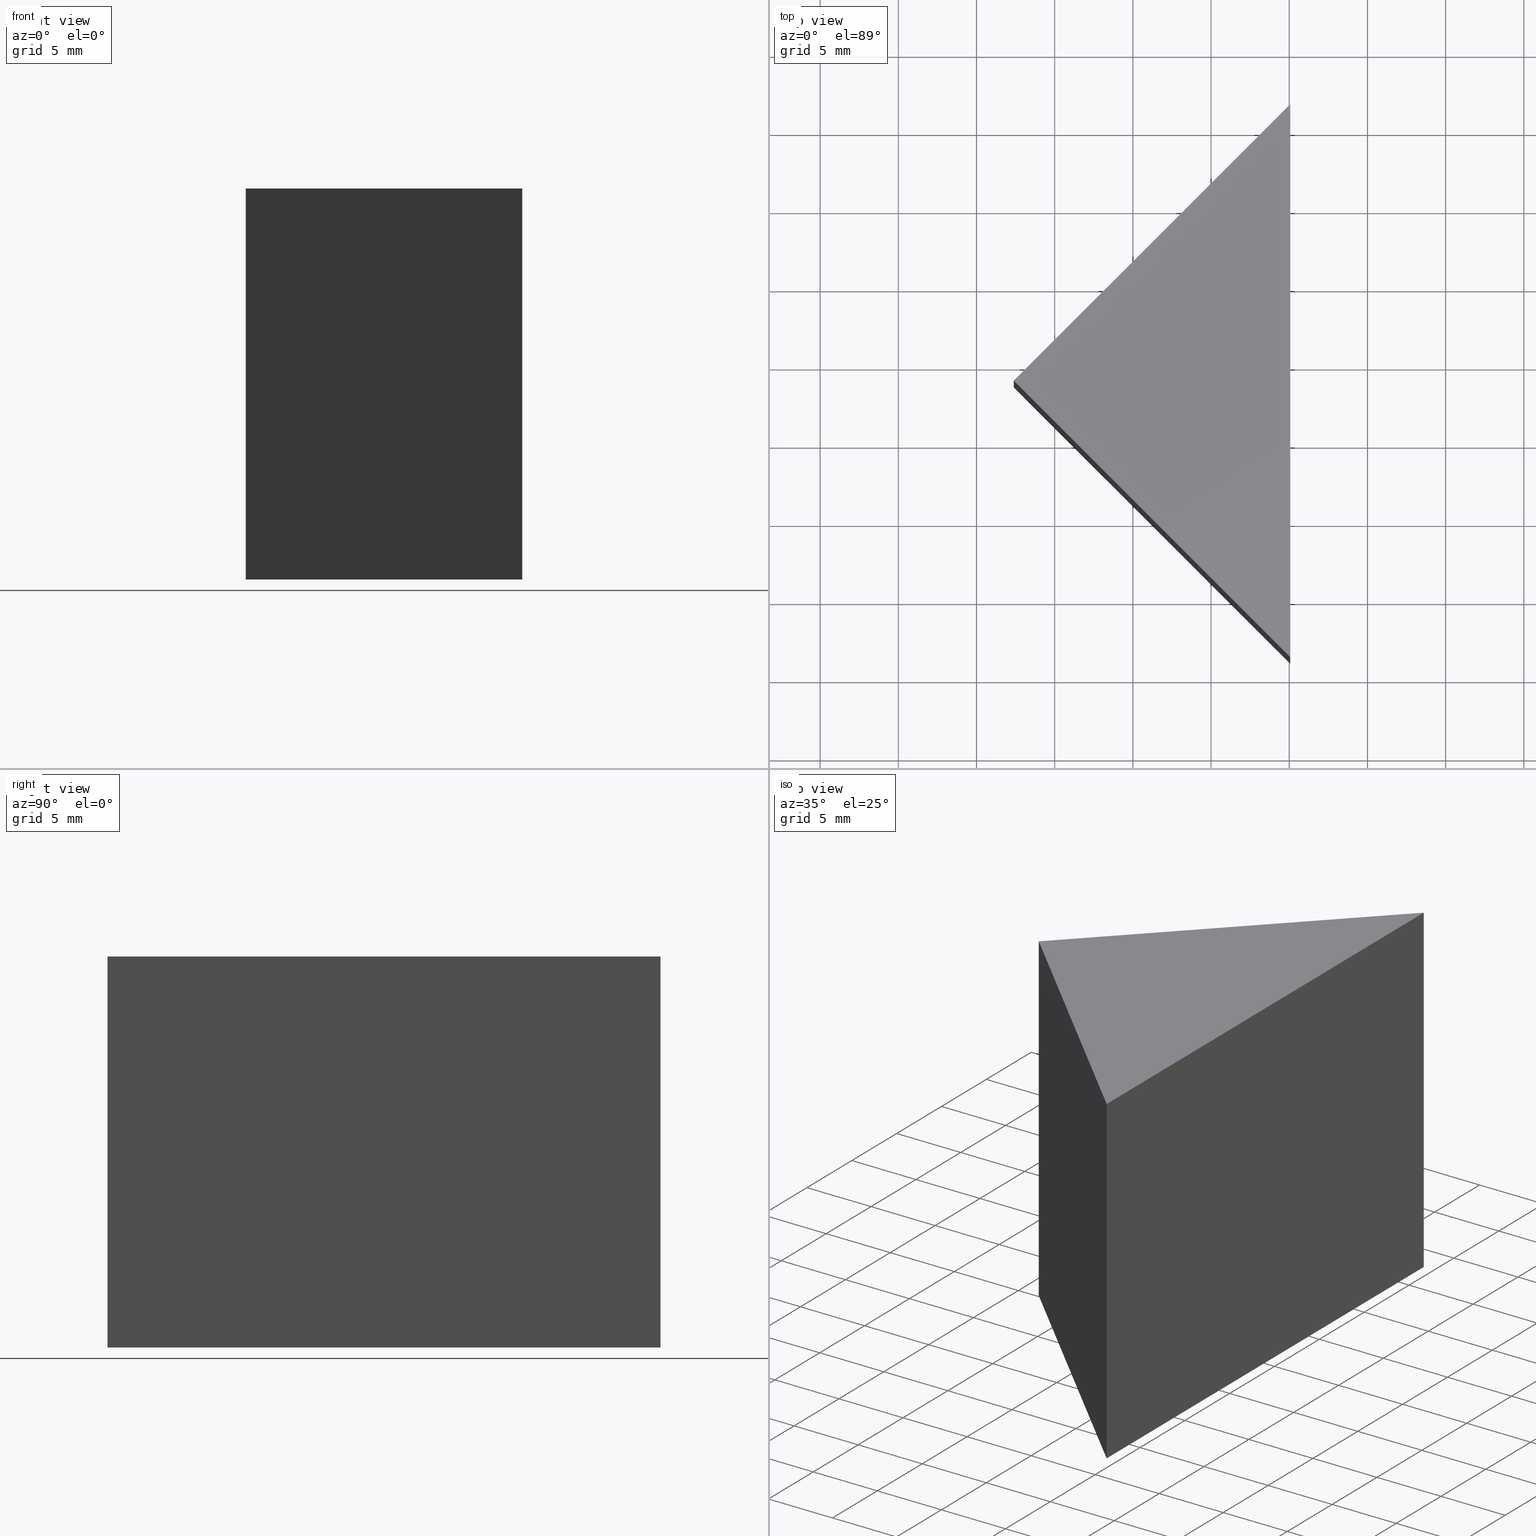
[diagram: canonical four-view strip — front | top / right | iso, engineering-drawing reading convention]
A machine part, canonical four-view strip (front | top / right | iso — engineering-drawing reading convention). The complete STEP part file that produces these views, byte-faithful:
ISO-10303-21;
HEADER;
FILE_DESCRIPTION (( 'STEP AP214' ),
    '1' );
FILE_NAME ('300005.STEP',
    '2019-08-12T08:06:06',
    ( '' ),
    ( '' ),
    'SwSTEP 2.0',
    'SolidWorks 2016',
    '' );
FILE_SCHEMA (( 'AUTOMOTIVE_DESIGN' ));
ENDSEC;

DATA;
#1 = CARTESIAN_POINT ( 'NONE',  ( 277.3833497629746000, 68.87846276417030800, 0.0000000000000000000 ) ) ;
#2 = DIRECTION ( 'NONE',  ( -0.0000000000000000000, -0.0000000000000000000, -1.000000000000000000 ) ) ;
#3 = DIRECTION ( 'NONE',  ( 0.7071067811865465700, -0.7071067811865484600, 0.0000000000000000000 ) ) ;
#4 = UNCERTAINTY_MEASURE_WITH_UNIT (LENGTH_MEASURE( 1.000000000000000100E-005 ), #111, 'distance_accuracy_value', 'NONE');
#5 = CARTESIAN_POINT ( 'NONE',  ( 0.0000000000000000000, 0.0000000000000000000, 25.00000000000000000 ) ) ;
#6 = ORIENTED_EDGE ( 'NONE', *, *, #159, .F. ) ;
#7 = SURFACE_STYLE_USAGE ( .BOTH. , #100 ) ;
#8 = PRODUCT_DEFINITION_SHAPE ( 'NONE', 'NONE',  #87 ) ;
#9 = ORIENTED_EDGE ( 'NONE', *, *, #116, .F. ) ;
#10 = VECTOR ( 'NONE', #84, 1000.000000000000000 ) ;
#11 = EDGE_LOOP ( 'NONE', ( #37, #55, #39, #146 ) ) ;
#12 = STYLED_ITEM ( 'NONE', ( #28 ), #68 ) ;
#13 = ORIENTED_EDGE ( 'NONE', *, *, #141, .F. ) ;
#14 = PRODUCT_DEFINITION_FORMATION_WITH_SPECIFIED_SOURCE ( '�κ�', '', #29, .NOT_KNOWN. ) ;
#15 = VECTOR ( 'NONE', #120, 1000.000000000000000 ) ;
#16 = VECTOR ( 'NONE', #117, 1000.000000000000100 ) ;
#17 = DIRECTION ( 'NONE',  ( 0.7071067811865470200, -0.7071067811865481300, 0.0000000000000000000 ) ) ;
#18 = DIRECTION ( 'NONE',  ( 1.000000000000000000, 0.0000000000000000000, 0.0000000000000000000 ) ) ;
#19 = VECTOR ( 'NONE', #2, 1000.000000000000000 ) ;
#20 = SURFACE_SIDE_STYLE ('',( #115 ) ) ;
#21 = FILL_AREA_STYLE_COLOUR ( '', #153 ) ;
#22 =( LENGTH_UNIT ( ) NAMED_UNIT ( * ) SI_UNIT ( .MILLI., .METRE. ) );
#23 = VERTEX_POINT ( 'NONE', #31 ) ;
#24 = AXIS2_PLACEMENT_3D ( 'NONE', #5, #57, #59 ) ;
#25 = ORIENTED_EDGE ( 'NONE', *, *, #104, .F. ) ;
#26 = LINE ( 'NONE', #72, #113 ) ;
#27 = VERTEX_POINT ( 'NONE', #30 ) ;
#28 = PRESENTATION_STYLE_ASSIGNMENT (( #7 ) ) ;
#29 = PRODUCT ( '300005', '300005', '', ( #48 ) ) ;
#30 = CARTESIAN_POINT ( 'NONE',  ( 295.0610192926383200, 86.55613229383399700, 25.00000000000000000 ) ) ;
#31 = CARTESIAN_POINT ( 'NONE',  ( 295.0610192926383200, 86.55613229383399700, 0.0000000000000000000 ) ) ;
#32 = PLANE ( 'NONE',  #167 ) ;
#33 =( LENGTH_UNIT ( ) NAMED_UNIT ( * ) SI_UNIT ( .MILLI., .METRE. ) );
#34 =( GEOMETRIC_REPRESENTATION_CONTEXT ( 3 ) GLOBAL_UNCERTAINTY_ASSIGNED_CONTEXT ( ( #4 ) ) GLOBAL_UNIT_ASSIGNED_CONTEXT ( ( #111, #50, #166 ) ) REPRESENTATION_CONTEXT ( 'NONE', 'WORKASPACE' ) );
#35 = CARTESIAN_POINT ( 'NONE',  ( 295.0610192926382600, 51.20079323450661200, 25.00000000000000000 ) ) ;
#36 = SHAPE_DEFINITION_REPRESENTATION ( #8, #68 ) ;
#37 = ORIENTED_EDGE ( 'NONE', *, *, #159, .T. ) ;
#38 = PRODUCT_RELATED_PRODUCT_CATEGORY ( 'part', '', ( #29 ) ) ;
#39 = ORIENTED_EDGE ( 'NONE', *, *, #142, .F. ) ;
#40 = ORIENTED_EDGE ( 'NONE', *, *, #104, .T. ) ;
#41 = FILL_AREA_STYLE ('',( #21 ) ) ;
#42 = MANIFOLD_SOLID_BREP ( '͹̨-����1', #91 ) ;
#43 = CARTESIAN_POINT ( 'NONE',  ( 277.3833497629746000, 68.87846276417030800, 25.00000000000000000 ) ) ;
#44 = EDGE_CURVE ( 'NONE', #160, #169, #88, .T. ) ;
#45 = DIRECTION ( 'NONE',  ( -0.7071067811865465700, 0.7071067811865484600, 0.0000000000000000000 ) ) ;
#46 = CARTESIAN_POINT ( 'NONE',  ( 277.3833497629746000, 68.87846276417030800, 0.0000000000000000000 ) ) ;
#47 = DIRECTION ( 'NONE',  ( -0.7071067811865481300, -0.7071067811865470200, -0.0000000000000000000 ) ) ;
#48 = PRODUCT_CONTEXT ( 'NONE', #152, 'mechanical' ) ;
#49 = FACE_OUTER_BOUND ( 'NONE', #67, .T. ) ;
#50 =( NAMED_UNIT ( * ) PLANE_ANGLE_UNIT ( ) SI_UNIT ( $, .RADIAN. ) );
#51 = LINE ( 'NONE', #85, #15 ) ;
#52 = AXIS2_PLACEMENT_3D ( 'NONE', #56, #161, #45 ) ;
#53 = MECHANICAL_DESIGN_GEOMETRIC_PRESENTATION_REPRESENTATION (  '', ( #12 ), #143 ) ;
#54 = LINE ( 'NONE', #95, #10 ) ;
#55 = ORIENTED_EDGE ( 'NONE', *, *, #66, .F. ) ;
#56 = CARTESIAN_POINT ( 'NONE',  ( 277.3833497629746000, 68.87846276417030800, 25.00000000000000000 ) ) ;
#57 = DIRECTION ( 'NONE',  ( -0.0000000000000000000, 0.0000000000000000000, 1.000000000000000000 ) ) ;
#58 = LINE ( 'NONE', #133, #19 ) ;
#59 = DIRECTION ( 'NONE',  ( 1.000000000000000000, 0.0000000000000000000, 0.0000000000000000000 ) ) ;
#60 =( NAMED_UNIT ( * ) SI_UNIT ( $, .STERADIAN. ) SOLID_ANGLE_UNIT ( ) );
#61 = FILL_AREA_STYLE_COLOUR ( '', #62 ) ;
#62 = COLOUR_RGB ( '',1.000000000000000000, 1.000000000000000000, 1.000000000000000000 ) ;
#63 = DIRECTION ( 'NONE',  ( 0.0000000000000000000, 0.0000000000000000000, 1.000000000000000000 ) ) ;
#64 = AXIS2_PLACEMENT_3D ( 'NONE', #164, #63, #76 ) ;
#65 = VECTOR ( 'NONE', #130, 1000.000000000000000 ) ;
#66 = EDGE_CURVE ( 'NONE', #69, #102, #58, .T. ) ;
#67 = EDGE_LOOP ( 'NONE', ( #77, #144, #129 ) ) ;
#68 = ADVANCED_BREP_SHAPE_REPRESENTATION ( '300005', ( #42, #64 ), #34 ) ;
#69 = VERTEX_POINT ( 'NONE', #71 ) ;
#70 = DIRECTION ( 'NONE',  ( 0.7071067811865481300, 0.7071067811865470200, 0.0000000000000000000 ) ) ;
#71 = CARTESIAN_POINT ( 'NONE',  ( 277.3833497629746000, 68.87846276417030800, 25.00000000000000000 ) ) ;
#72 = CARTESIAN_POINT ( 'NONE',  ( 295.0610192926383200, 86.55613229383399700, 25.00000000000000000 ) ) ;
#73 = AXIS2_PLACEMENT_3D ( 'NONE', #83, #128, #18 ) ;
#74 = APPLICATION_PROTOCOL_DEFINITION ( 'draft international standard', 'automotive_design', 1998, #152 ) ;
#75 = UNCERTAINTY_MEASURE_WITH_UNIT (LENGTH_MEASURE( 1.000000000000000100E-005 ), #22, 'distance_accuracy_value', 'NONE');
#76 = DIRECTION ( 'NONE',  ( 1.000000000000000000, 0.0000000000000000000, 0.0000000000000000000 ) ) ;
#77 = ORIENTED_EDGE ( 'NONE', *, *, #141, .T. ) ;
#78 = EDGE_CURVE ( 'NONE', #27, #23, #26, .T. ) ;
#79 = EDGE_LOOP ( 'NONE', ( #137, #105, #13, #110 ) ) ;
#80 = PRESENTATION_STYLE_ASSIGNMENT (( #108 ) ) ;
#81 = PRODUCT_DEFINITION_CONTEXT ( 'detailed design', #154, 'design' ) ;
#82 = PLANE ( 'NONE',  #24 ) ;
#83 = CARTESIAN_POINT ( 'NONE',  ( 0.0000000000000000000, 0.0000000000000000000, 0.0000000000000000000 ) ) ;
#84 = DIRECTION ( 'NONE',  ( -0.7071067811865481300, -0.7071067811865470200, -0.0000000000000000000 ) ) ;
#85 = CARTESIAN_POINT ( 'NONE',  ( 295.0610192926382600, 51.20079323450661200, 25.00000000000000000 ) ) ;
#86 = ORIENTED_EDGE ( 'NONE', *, *, #44, .T. ) ;
#87 = PRODUCT_DEFINITION ( 'δ֪', '', #14, #81 ) ;
#88 = LINE ( 'NONE', #132, #65 ) ;
#89 = LINE ( 'NONE', #150, #16 ) ;
#90 = ADVANCED_FACE ( 'NONE', ( #157 ), #96, .F. ) ;
#91 = CLOSED_SHELL ( 'NONE', ( #140, #90, #138, #139, #112 ) ) ;
#92 = LINE ( 'NONE', #131, #103 ) ;
#93 = LINE ( 'NONE', #1, #158 ) ;
#94 = ORIENTED_EDGE ( 'NONE', *, *, #78, .F. ) ;
#95 = CARTESIAN_POINT ( 'NONE',  ( 277.3833497629746000, 68.87846276417030800, 25.00000000000000000 ) ) ;
#96 = PLANE ( 'NONE',  #162 ) ;
#97 = DIRECTION ( 'NONE',  ( -1.570092458683774900E-015, -1.000000000000000000, 0.0000000000000000000 ) ) ;
#98 =( NAMED_UNIT ( * ) SI_UNIT ( $, .STERADIAN. ) SOLID_ANGLE_UNIT ( ) );
#99 = PRESENTATION_LAYER_ASSIGNMENT (  '', '', ( #109 ) ) ;
#100 = SURFACE_SIDE_STYLE ('',( #114 ) ) ;
#101 = ORIENTED_EDGE ( 'NONE', *, *, #145, .F. ) ;
#102 = VERTEX_POINT ( 'NONE', #46 ) ;
#103 = VECTOR ( 'NONE', #47, 1000.000000000000000 ) ;
#104 = EDGE_CURVE ( 'NONE', #169, #23, #155, .T. ) ;
#105 = ORIENTED_EDGE ( 'NONE', *, *, #44, .F. ) ;
#106 = CARTESIAN_POINT ( 'NONE',  ( 295.0610192926382600, 51.20079323450661200, 0.0000000000000000000 ) ) ;
#107 = DIRECTION ( 'NONE',  ( 1.570092458683774700E-015, 1.000000000000000000, 0.0000000000000000000 ) ) ;
#108 = SURFACE_STYLE_USAGE ( .BOTH. , #20 ) ;
#109 = STYLED_ITEM ( 'NONE', ( #80 ), #42 ) ;
#110 = ORIENTED_EDGE ( 'NONE', *, *, #66, .T. ) ;
#111 =( LENGTH_UNIT ( ) NAMED_UNIT ( * ) SI_UNIT ( .MILLI., .METRE. ) );
#112 = ADVANCED_FACE ( 'NONE', ( #163 ), #118, .F. ) ;
#113 = VECTOR ( 'NONE', #135, 1000.000000000000000 ) ;
#114 = SURFACE_STYLE_FILL_AREA ( #136 ) ;
#115 = SURFACE_STYLE_FILL_AREA ( #41 ) ;
#116 = EDGE_CURVE ( 'NONE', #160, #27, #51, .T. ) ;
#117 = DIRECTION ( 'NONE',  ( 0.7071067811865465700, -0.7071067811865484600, 0.0000000000000000000 ) ) ;
#118 = PLANE ( 'NONE',  #73 ) ;
#119 = CARTESIAN_POINT ( 'NONE',  ( 295.0610192926382600, 51.20079323450661200, 25.00000000000000000 ) ) ;
#120 = DIRECTION ( 'NONE',  ( 1.570092458683774700E-015, 1.000000000000000000, 0.0000000000000000000 ) ) ;
#121 = MECHANICAL_DESIGN_GEOMETRIC_PRESENTATION_REPRESENTATION (  '', ( #109 ), #125 ) ;
#122 = EDGE_LOOP ( 'NONE', ( #40, #94, #9, #86 ) ) ;
#123 = CARTESIAN_POINT ( 'NONE',  ( 295.0610192926382600, 51.20079323450661200, 0.0000000000000000000 ) ) ;
#124 = VECTOR ( 'NONE', #107, 1000.000000000000000 ) ;
#125 =( GEOMETRIC_REPRESENTATION_CONTEXT ( 3 ) GLOBAL_UNCERTAINTY_ASSIGNED_CONTEXT ( ( #148 ) ) GLOBAL_UNIT_ASSIGNED_CONTEXT ( ( #33, #149, #98 ) ) REPRESENTATION_CONTEXT ( 'NONE', 'WORKASPACE' ) );
#126 = PRESENTATION_LAYER_ASSIGNMENT (  '', '', ( #12 ) ) ;
#127 = EDGE_LOOP ( 'NONE', ( #101, #6, #25 ) ) ;
#128 = DIRECTION ( 'NONE',  ( -0.0000000000000000000, 0.0000000000000000000, 1.000000000000000000 ) ) ;
#129 = ORIENTED_EDGE ( 'NONE', *, *, #142, .T. ) ;
#130 = DIRECTION ( 'NONE',  ( -0.0000000000000000000, -0.0000000000000000000, -1.000000000000000000 ) ) ;
#131 = CARTESIAN_POINT ( 'NONE',  ( 277.3833497629746000, 68.87846276417030800, 0.0000000000000000000 ) ) ;
#132 = CARTESIAN_POINT ( 'NONE',  ( 295.0610192926382600, 51.20079323450661200, 25.00000000000000000 ) ) ;
#133 = CARTESIAN_POINT ( 'NONE',  ( 277.3833497629746000, 68.87846276417030800, 25.00000000000000000 ) ) ;
#134 = PLANE ( 'NONE',  #52 ) ;
#135 = DIRECTION ( 'NONE',  ( -0.0000000000000000000, -0.0000000000000000000, -1.000000000000000000 ) ) ;
#136 = FILL_AREA_STYLE ('',( #61 ) ) ;
#137 = ORIENTED_EDGE ( 'NONE', *, *, #145, .T. ) ;
#138 = ADVANCED_FACE ( 'NONE', ( #156 ), #32, .F. ) ;
#139 = ADVANCED_FACE ( 'NONE', ( #49 ), #82, .T. ) ;
#140 = ADVANCED_FACE ( 'NONE', ( #147 ), #134, .F. ) ;
#141 = EDGE_CURVE ( 'NONE', #69, #160, #89, .T. ) ;
#142 = EDGE_CURVE ( 'NONE', #27, #69, #54, .T. ) ;
#143 =( GEOMETRIC_REPRESENTATION_CONTEXT ( 3 ) GLOBAL_UNCERTAINTY_ASSIGNED_CONTEXT ( ( #75 ) ) GLOBAL_UNIT_ASSIGNED_CONTEXT ( ( #22, #168, #60 ) ) REPRESENTATION_CONTEXT ( 'NONE', 'WORKASPACE' ) );
#144 = ORIENTED_EDGE ( 'NONE', *, *, #116, .T. ) ;
#145 = EDGE_CURVE ( 'NONE', #102, #169, #93, .T. ) ;
#146 = ORIENTED_EDGE ( 'NONE', *, *, #78, .T. ) ;
#147 = FACE_OUTER_BOUND ( 'NONE', #79, .T. ) ;
#148 = UNCERTAINTY_MEASURE_WITH_UNIT (LENGTH_MEASURE( 1.000000000000000100E-005 ), #33, 'distance_accuracy_value', 'NONE');
#149 =( NAMED_UNIT ( * ) PLANE_ANGLE_UNIT ( ) SI_UNIT ( $, .RADIAN. ) );
#150 = CARTESIAN_POINT ( 'NONE',  ( 277.3833497629746000, 68.87846276417030800, 25.00000000000000000 ) ) ;
#151 = APPLICATION_PROTOCOL_DEFINITION ( 'draft international standard', 'automotive_design', 1998, #154 ) ;
#152 = APPLICATION_CONTEXT ( 'automotive_design' ) ;
#153 = COLOUR_RGB ( '',1.000000000000000000, 1.000000000000000000, 1.000000000000000000 ) ;
#154 = APPLICATION_CONTEXT ( 'automotive_design' ) ;
#155 = LINE ( 'NONE', #106, #124 ) ;
#156 = FACE_OUTER_BOUND ( 'NONE', #11, .T. ) ;
#157 = FACE_OUTER_BOUND ( 'NONE', #122, .T. ) ;
#158 = VECTOR ( 'NONE', #3, 1000.000000000000100 ) ;
#159 = EDGE_CURVE ( 'NONE', #23, #102, #92, .T. ) ;
#160 = VERTEX_POINT ( 'NONE', #35 ) ;
#161 = DIRECTION ( 'NONE',  ( 0.7071067811865484600, 0.7071067811865465700, -0.0000000000000000000 ) ) ;
#162 = AXIS2_PLACEMENT_3D ( 'NONE', #119, #165, #97 ) ;
#163 = FACE_OUTER_BOUND ( 'NONE', #127, .T. ) ;
#164 = CARTESIAN_POINT ( 'NONE',  ( 0.0000000000000000000, 0.0000000000000000000, 0.0000000000000000000 ) ) ;
#165 = DIRECTION ( 'NONE',  ( -1.000000000000000000, 1.570092458683774900E-015, 0.0000000000000000000 ) ) ;
#166 =( NAMED_UNIT ( * ) SI_UNIT ( $, .STERADIAN. ) SOLID_ANGLE_UNIT ( ) );
#167 = AXIS2_PLACEMENT_3D ( 'NONE', #43, #17, #70 ) ;
#168 =( NAMED_UNIT ( * ) PLANE_ANGLE_UNIT ( ) SI_UNIT ( $, .RADIAN. ) );
#169 = VERTEX_POINT ( 'NONE', #123 ) ;
ENDSEC;
END-ISO-10303-21;
